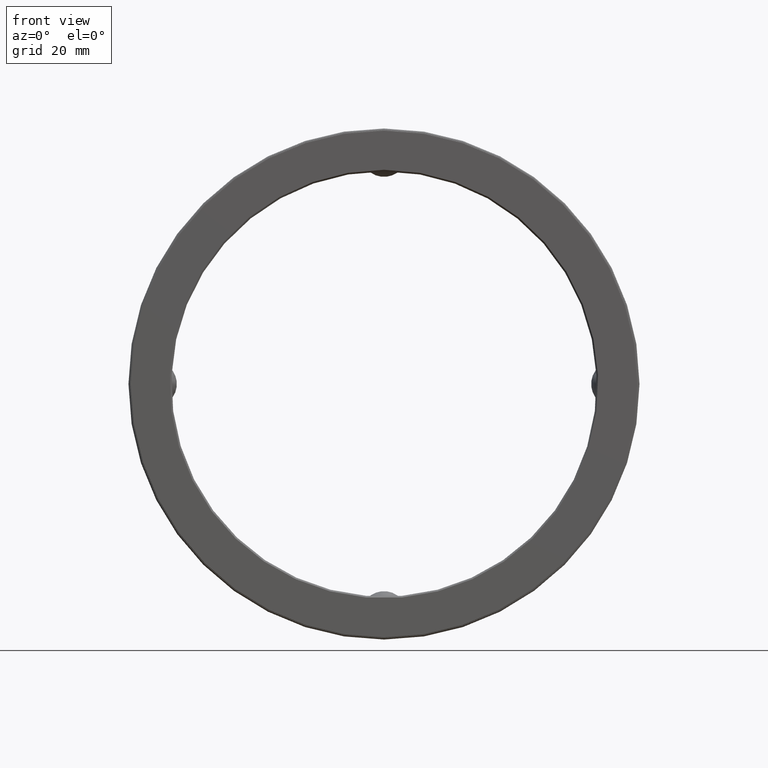
[diagram: clean part render]
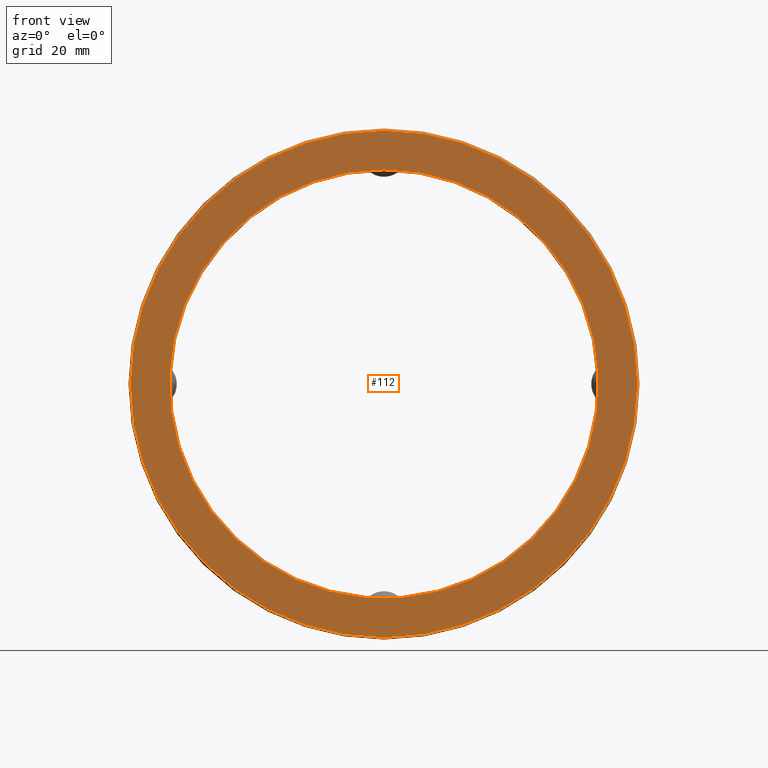
[diagram: same view with one face highlighted and labeled with its STEP entity id]
A machine part, front view. The second image highlights one B-rep face of the part: STEP entity #112.
In plain terms, the highlighted planar face has unit normal (-0, 1, 0).
Its self-contained STEP definition (entity closure, byte-faithful):
#3 = CARTESIAN_POINT ( 'NONE',  ( 0.0000000000000000000, -2.433052119357234300E-016, 0.0000000000000000000 ) ) ;
#4 = EDGE_LOOP ( 'NONE', ( #182 ) ) ;
#10 = CARTESIAN_POINT ( 'NONE',  ( 0.0000000000000000000, 0.0000000000000000000, 0.0000000000000000000 ) ) ;
#36 = EDGE_CURVE ( 'NONE', #167, #167, #503, .T. ) ;
#43 = DIRECTION ( 'NONE',  ( 0.0000000000000000000, 0.0000000000000000000, 1.000000000000000000 ) ) ;
#60 = FACE_OUTER_BOUND ( 'NONE', #4, .T. ) ;
#103 = CARTESIAN_POINT ( 'NONE',  ( -9.912768790691179700E-032, -1.216526059678617200E-016, 0.0000000000000000000 ) ) ;
#112 = ADVANCED_FACE ( 'NONE', ( #60, #390 ), #369, .F. ) ;
#131 = DIRECTION ( 'NONE',  ( -0.0000000000000000000, 1.000000000000000000, -0.0000000000000000000 ) ) ;
#164 = ORIENTED_EDGE ( 'NONE', *, *, #36, .T. ) ;
#167 = VERTEX_POINT ( 'NONE', #489 ) ;
#182 = ORIENTED_EDGE ( 'NONE', *, *, #435, .F. ) ;
#188 = AXIS2_PLACEMENT_3D ( 'NONE', #3, #566, #433 ) ;
#261 = DIRECTION ( 'NONE',  ( 0.0000000000000000000, 0.0000000000000000000, 1.000000000000000000 ) ) ;
#263 = CARTESIAN_POINT ( 'NONE',  ( 0.0000000000000000000, -2.433052119357234300E-016, 3.100000000000000100 ) ) ;
#296 = AXIS2_PLACEMENT_3D ( 'NONE', #10, #131, #261 ) ;
#365 = VERTEX_POINT ( 'NONE', #263 ) ;
#369 = PLANE ( 'NONE',  #530 ) ;
#381 = CIRCLE ( 'NONE', #188, 3.100000000000000100 ) ;
#390 = FACE_BOUND ( 'NONE', #539, .T. ) ;
#431 = DIRECTION ( 'NONE',  ( -0.0000000000000000000, 1.000000000000000000, 0.0000000000000000000 ) ) ;
#433 = DIRECTION ( 'NONE',  ( 0.0000000000000000000, 0.0000000000000000000, 1.000000000000000000 ) ) ;
#435 = EDGE_CURVE ( 'NONE', #365, #365, #381, .T. ) ;
#489 = CARTESIAN_POINT ( 'NONE',  ( 0.0000000000000000000, 0.0000000000000000000, 2.619999999999999200 ) ) ;
#503 = CIRCLE ( 'NONE', #296, 2.619999999999999200 ) ;
#530 = AXIS2_PLACEMENT_3D ( 'NONE', #103, #431, #43 ) ;
#539 = EDGE_LOOP ( 'NONE', ( #164 ) ) ;
#566 = DIRECTION ( 'NONE',  ( -0.0000000000000000000, 1.000000000000000000, -0.0000000000000000000 ) ) ;